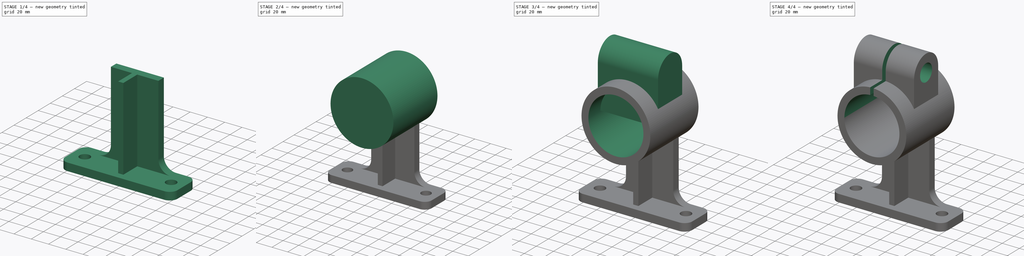
[diagram: build sequence overview — one tinted view per stage of 4, left to right]
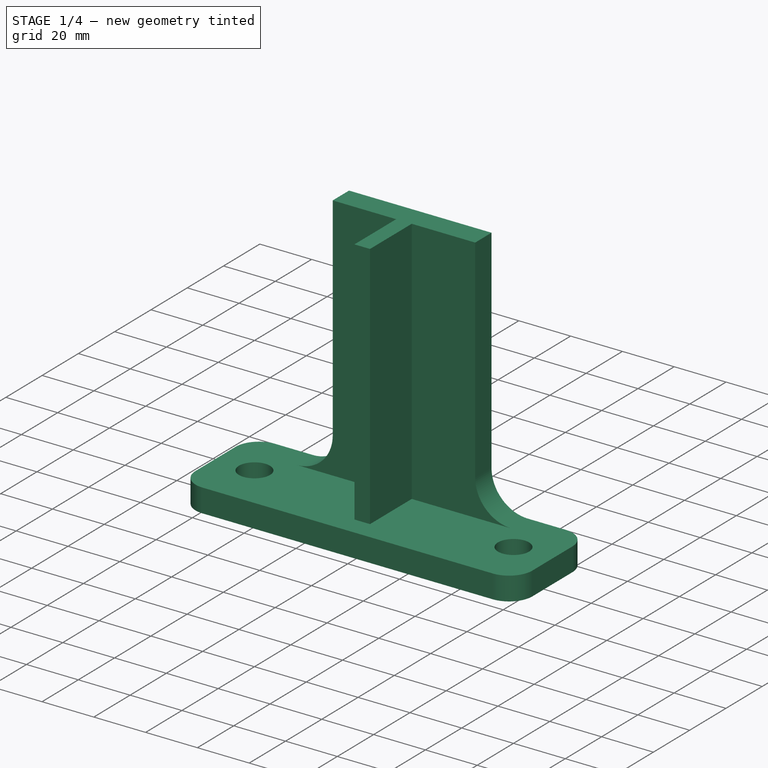
[diagram: stage 1 of 4 — iso view after this stage's code; geometry added in this stage tinted green]
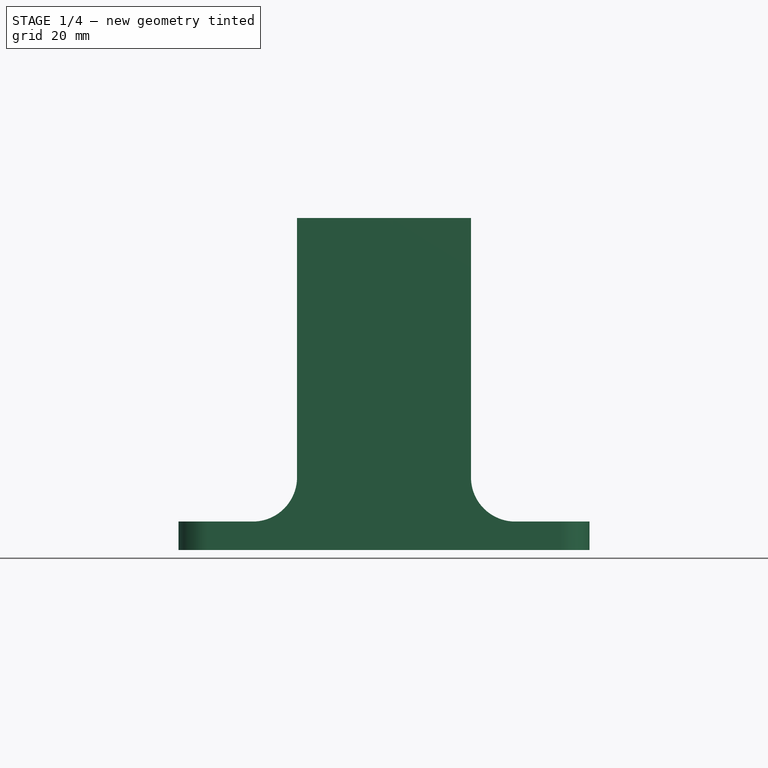
[diagram: stage 1 of 4 — front view after this stage's code; geometry added in this stage tinted green]
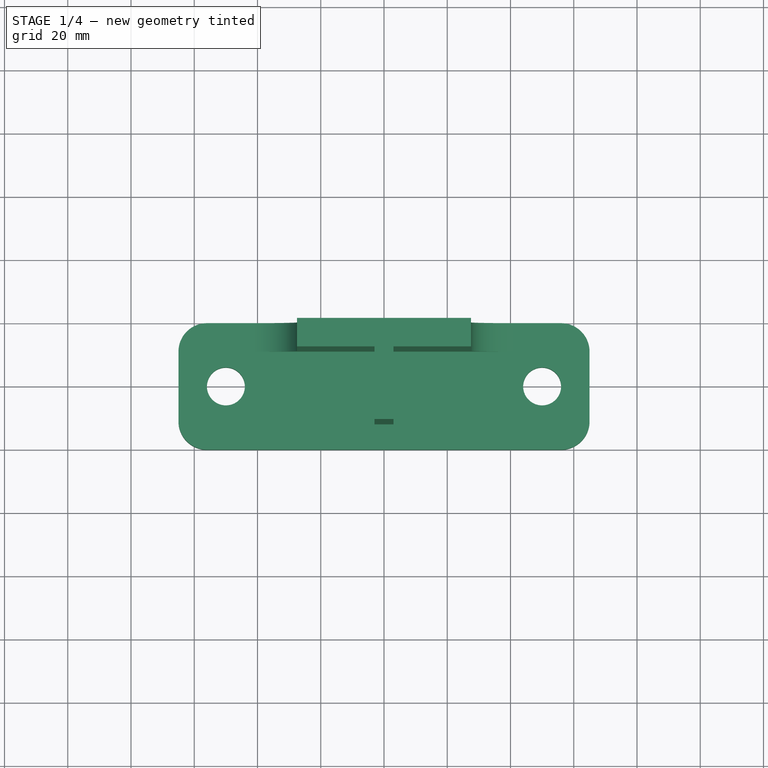
[diagram: stage 1 of 4 — top view after this stage's code; geometry added in this stage tinted green]
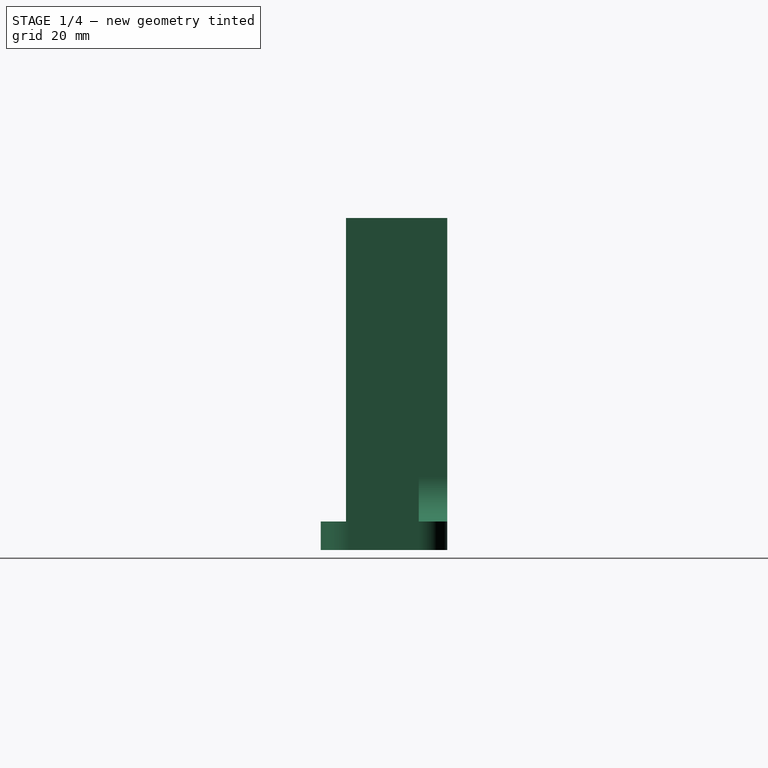
[diagram: stage 1 of 4 — right view after this stage's code; geometry added in this stage tinted green]
FCSTD DOCUMENT  (FreeCAD 1.1R41905 (Git))
Label: 25-SPO-14-UPPER_ROD_MOUNT
License: Creative Commons Attribution-NonCommercial-ShareAlike 4.0
LicenseURL: https://creativecommons.org/licenses/by-nc-sa/4.0/
objects: Sketcher::SketchObject×7, PartDesign::Pad×6, PartDesign::Pocket×3, App::Point×1, PartDesign::Fillet×1, PartDesign::Hole×1, PartDesign::Body×1
note: 48 computed .brp shape members not serialized (recipe doc carries the construction recipe); baked Part::Feature solids carry a one-line shape summary decoded from their .brp

FEATURE [App::Point] Origin001  label="Origine"
  Role = Origin
FEATURE [Sketcher::SketchObject] Sketch
  ArcFitTolerance = 1e-06
  AttachmentSupport = -> [Origin]
  ExternalTypes = [0]
  FullyConstrained = true
  MakeInternals = false
  MapMode = 5
  sketch-geometry (12):
    g0: LineSegment StartX=-65 StartY=11 StartZ=0 EndX=-65 EndY=-11 EndZ=0
    g1: LineSegment StartX=-56 StartY=-20 StartZ=0 EndX=56 EndY=-20 EndZ=0
    g2: LineSegment StartX=65 StartY=-11 StartZ=0 EndX=65 EndY=11 EndZ=0
    g3: LineSegment StartX=56 StartY=20 StartZ=0 EndX=-56 EndY=20 EndZ=0
    g4: ArcOfCircle CenterX=-56 CenterY=11 CenterZ=0 NormalX=0 NormalY=0 NormalZ=1 AngleXU=0 Radius=9 StartAngle=1.5708 EndAngle=3.14159
    g5: ArcOfCircle CenterX=-56 CenterY=-11 CenterZ=0 NormalX=0 NormalY=0 NormalZ=1 AngleXU=0 Radius=9 StartAngle=3.14159 EndAngle=4.71239
    g6: ArcOfCircle CenterX=56 CenterY=-11 CenterZ=0 NormalX=0 NormalY=0 NormalZ=1 AngleXU=0 Radius=9 StartAngle=4.71239 EndAngle=6.28319
    g7: ArcOfCircle CenterX=56 CenterY=11 CenterZ=0 NormalX=0 NormalY=0 NormalZ=1 AngleXU=0 Radius=9 StartAngle=1e-16 EndAngle=1.5708
    g8: GeomPoint [constr] X=-65 Y=20 Z=0
    g9: GeomPoint [constr] X=65 Y=-20 Z=0
    g10: Circle CenterX=-50 CenterY=0 CenterZ=0 NormalX=0 NormalY=0 NormalZ=1 AngleXU=0 Radius=6
    g11: Circle CenterX=50 CenterY=0 CenterZ=0 NormalX=0 NormalY=0 NormalZ=1 AngleXU=0 Radius=6
  constraints (28):
    c: Tangent(g0,g4) = -1.5708
    c: Tangent(g0,g5) = -1.5708
    c: Tangent(g1,g5) = -1.5708
    c: Tangent(g1,g6) = -1.5708
    c: Tangent(g2,g6) = -1.5708
    c: Tangent(g2,g7) = -1.5708
    c: Tangent(g3,g7) = -1.5708
    c: Tangent(g3,g4) = -1.5708
    c: Vertical(g0)
    c: Vertical(g2)
    c: Horizontal(g1)
    c: Horizontal(g3)
    c: Equal(g4,g5)
    c: Equal(g5,g6)
    c: Equal(g6,g7)
    c: PointOnObject(g8,g0)
    c: PointOnObject(g8,g3)
    c: PointOnObject(g9,g1)
    c: PointOnObject(g9,g2)
    c: Distance(g0,g2) = 130
    c: Distance(g1,g3) = 40
    c: Radius(g5) = 9
    c: Symmetric(g4,g6,g-1)
    c: PointOnObject(g10,g-1)
    c: DistanceX(g10,g11) = 100
    c: Symmetric(g10,g11,g-2)
    c: Equal(g10,g11)
    c: Diameter(g11) = 12
FEATURE [PartDesign::Pad] Pad
  Direction = (0,0,1)
  Length = 9
  Length2 = 10
  Profile = -> Sketch
  ReferenceAxis = -> Sketch [N_Axis]
  Refine = true
  Suppressed = false
  Type = 0
FEATURE [Sketcher::SketchObject] Sketch001
  ArcFitTolerance = 1e-06
  AttachmentSupport = -> [Origin]
  ExternalGeometry = -> [Pad]
  ExternalTypes = [0,0]
  FullyConstrained = true
  MakeInternals = false
  MapMode = 5
  sketch-geometry (8):
    g0: LineSegment StartX=-27.5 StartY=20 StartZ=0 EndX=-27.5 EndY=11 EndZ=0
    g1: LineSegment StartX=-27.5 StartY=11 StartZ=0 EndX=-3 EndY=11 EndZ=0
    g2: LineSegment StartX=27.5 StartY=11 StartZ=0 EndX=27.5 EndY=20 EndZ=0
    g3: LineSegment StartX=27.5 StartY=20 StartZ=0 EndX=-27.5 EndY=20 EndZ=0
    g4: LineSegment StartX=-3 StartY=11 StartZ=0 EndX=-3 EndY=-12 EndZ=0
    g5: LineSegment StartX=-3 StartY=-12 StartZ=0 EndX=3 EndY=-12 EndZ=0
    g6: LineSegment StartX=3 StartY=-12 StartZ=0 EndX=3 EndY=11 EndZ=0
    g7: LineSegment StartX=3 StartY=11 StartZ=0 EndX=27.5 EndY=11 EndZ=0
  constraints (22):
    c: Coincident(g0,g1)
    c: Coincident(g7,g2)
    c: Coincident(g2,g3)
    c: Coincident(g3,g0)
    c: Vertical(g0)
    c: Vertical(g2)
    c: Distance(g0,g2) = 55
    c: Distance(g1,g3) = 9
    c: PointOnObject(g0,g-3)
    c: Symmetric(g2,g0,g-2)
    c: Coincident(g4,g5)
    c: Coincident(g5,g6)
    c: Vertical(g4)
    c: Vertical(g6)
    c: Distance(g4,g6) = 6
    c: Symmetric(g5,g4,g-2)
    c: Distance(g5,g-4) = 8
    c: Horizontal(g1)
    c: Horizontal(g7)
    c: Coincident(g4,g1)
    c: Coincident(g7,g6)
    c: Horizontal(g6,g1)
FEATURE [PartDesign::Pad] Pad001
  BaseFeature = -> Pad
  Direction = (0,0,1)
  Length = 105
  Length2 = 10
  Profile = -> Sketch001
  ReferenceAxis = -> Sketch001 [N_Axis]
  Refine = true
  Suppressed = false
  Type = 0
FEATURE [PartDesign::Fillet] Fillet
  Base = -> Pad001 [Edge18,Edge12]
  BaseFeature = -> Pad001
  Radius = 14
  Refine = true
  SupportTransform = false
  Suppressed = false
  UseAllEdges = false
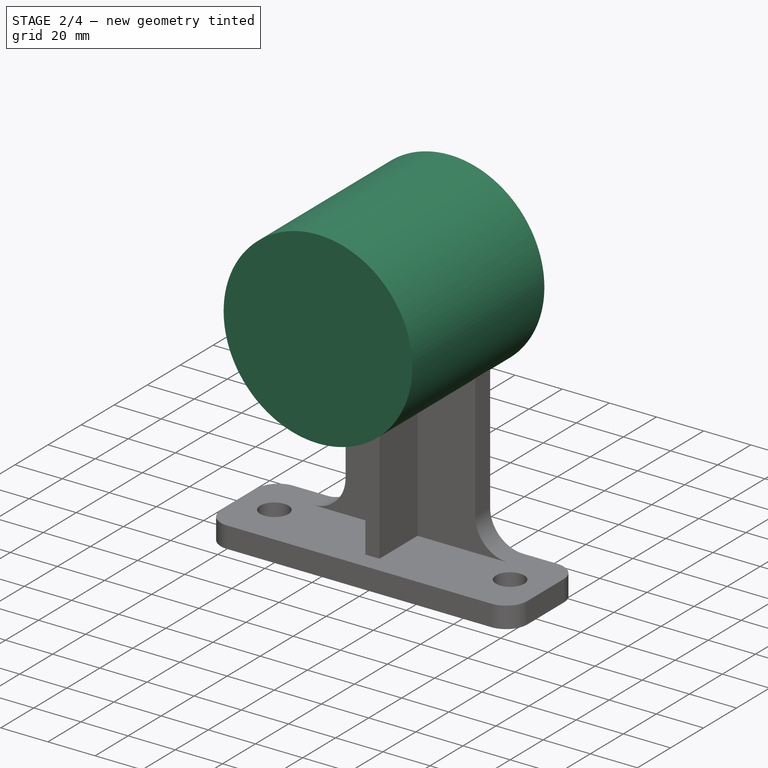
[diagram: stage 2 of 4 — iso view after this stage's code; geometry added in this stage tinted green]
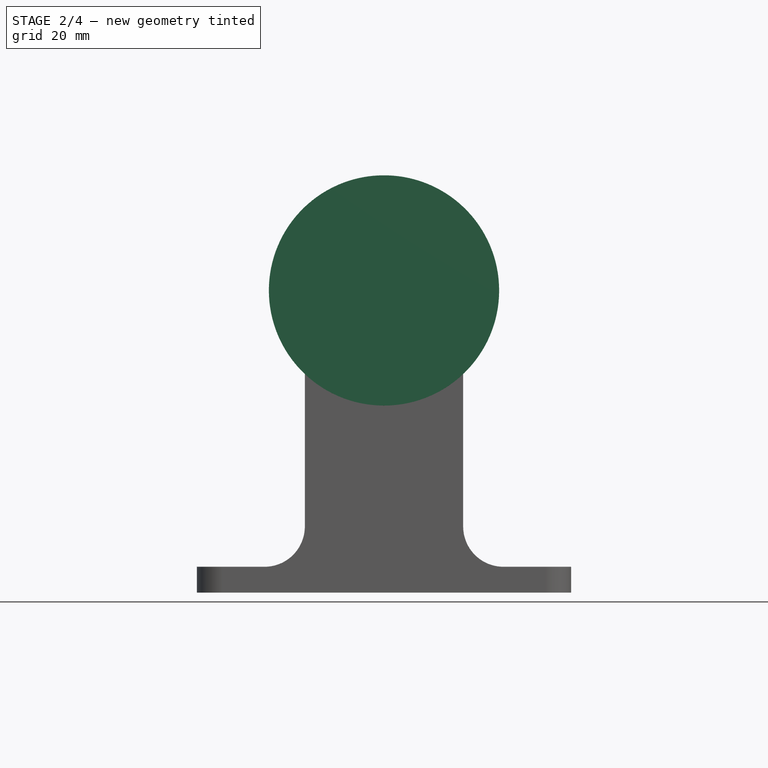
[diagram: stage 2 of 4 — front view after this stage's code; geometry added in this stage tinted green]
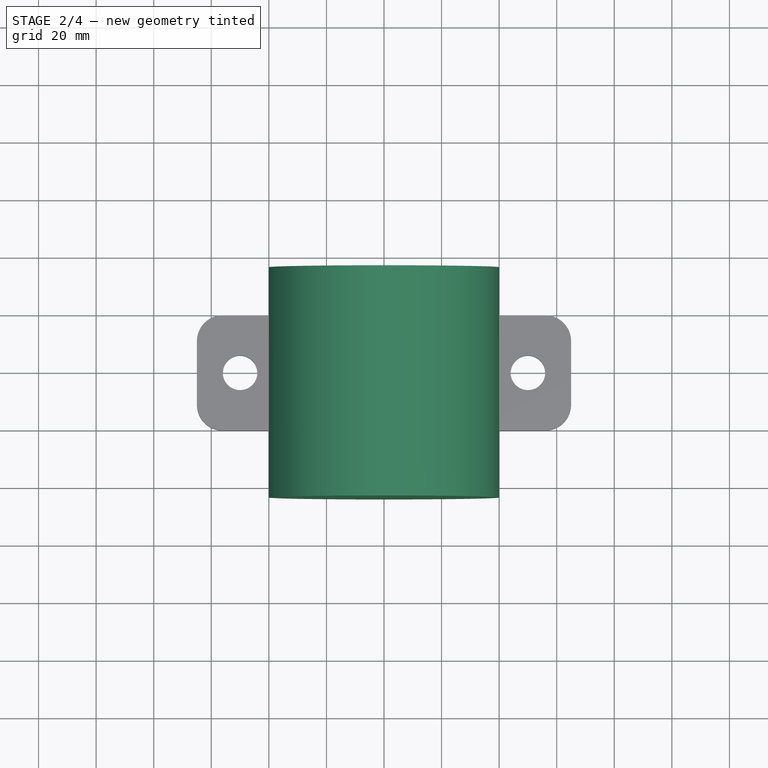
[diagram: stage 2 of 4 — top view after this stage's code; geometry added in this stage tinted green]
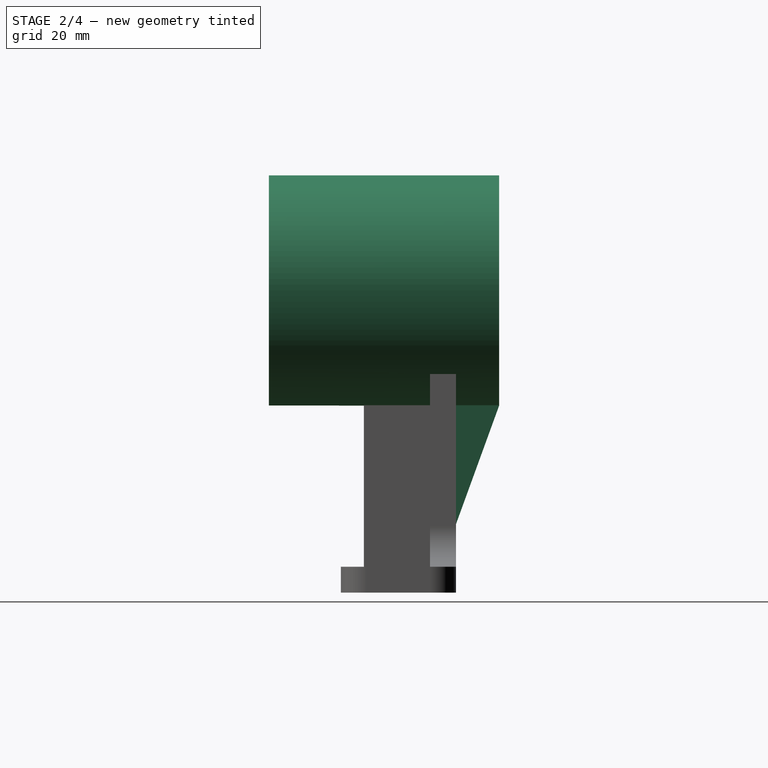
[diagram: stage 2 of 4 — right view after this stage's code; geometry added in this stage tinted green]
FEATURE [Sketcher::SketchObject] Sketch002
  ArcFitTolerance = 1e-06
  AttachmentOffset = pos=(0,0,15) rot=(0,0,1;0rad)
  AttachmentSupport = -> [Fillet]
  ExternalGeometry = -> [Fillet]
  ExternalTypes = [0]
  FullyConstrained = true
  MakeInternals = false
  MapMode = 5
  Placement = pos=(0,35,-3.3e-15) rot=(0,0.707107,0.707107;3.14159rad)
  sketch-geometry (1):
    g0: Circle CenterX=0 CenterY=105 CenterZ=0 NormalX=0 NormalY=0 NormalZ=1 AngleXU=0 Radius=40
  constraints (2):
    c: Diameter(g0) = 80
    c: Symmetric(g-3,g-3,g0)
FEATURE [PartDesign::Pad] Pad002
  BaseFeature = -> Fillet
  Direction = (0,1,0)
  Length = 80
  Length2 = 10
  Profile = -> Sketch002
  ReferenceAxis = -> Sketch002 [N_Axis]
  Refine = true
  Reversed = true
  Suppressed = false
  Type = 0
FEATURE [Sketcher::SketchObject] Sketch003
  ArcFitTolerance = 1e-06
  AttachmentSupport = -> [Origin]
  ExternalGeometry = -> [Pad002]
  ExternalTypes = [0,0]
  FullyConstrained = true
  MakeInternals = false
  MapMode = 5
  Placement = pos=(0,0,0) rot=(0.57735,0.57735,0.57735;2.0944rad)
  sketch-geometry (3):
    g0: LineSegment StartX=35 StartY=65 StartZ=0 EndX=20 EndY=65 EndZ=0
    g1: LineSegment StartX=20 StartY=65 StartZ=0 EndX=20 EndY=23.7878 EndZ=0
    g2: LineSegment StartX=20 StartY=23.7878 StartZ=0 EndX=35 EndY=65 EndZ=0
  constraints (8):
    c: Coincident(g-3,g0)
    c: PointOnObject(g0,g-4)
    c: Horizontal(g0)
    c: Coincident(g0,g1)
    c: PointOnObject(g1,g-4)
    c: Coincident(g1,g2)
    c: Coincident(g2,g0)
    c: Angle(g2,g1) = 0.349066
FEATURE [PartDesign::Pad] Pad003
  BaseFeature = -> Pad002
  Direction = (1,0,0)
  Length = 6
  Length2 = 10
  Midplane = true
  Profile = -> Sketch003
  ReferenceAxis = -> Sketch003 [N_Axis]
  Refine = true
  Suppressed = false
  Type = 0
FEATURE [PartDesign::Pad] Pad004
  BaseFeature = -> Pad003
  Direction = (0,0,1)
  Length = 10
  Length2 = 10
  Profile = -> Pad003 [Face28]
  Refine = true
  Suppressed = false
  Type = 0
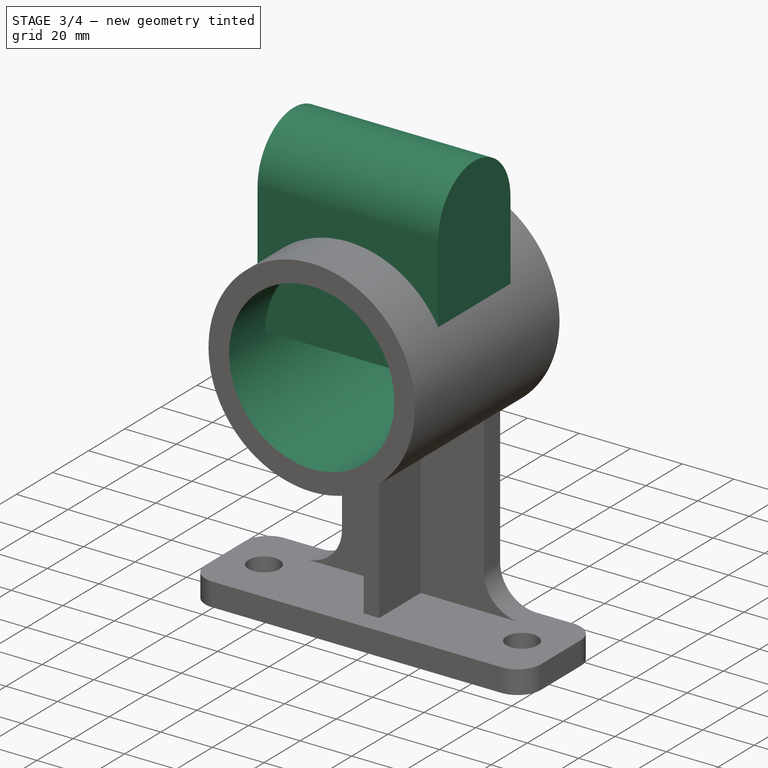
[diagram: stage 3 of 4 — iso view after this stage's code; geometry added in this stage tinted green]
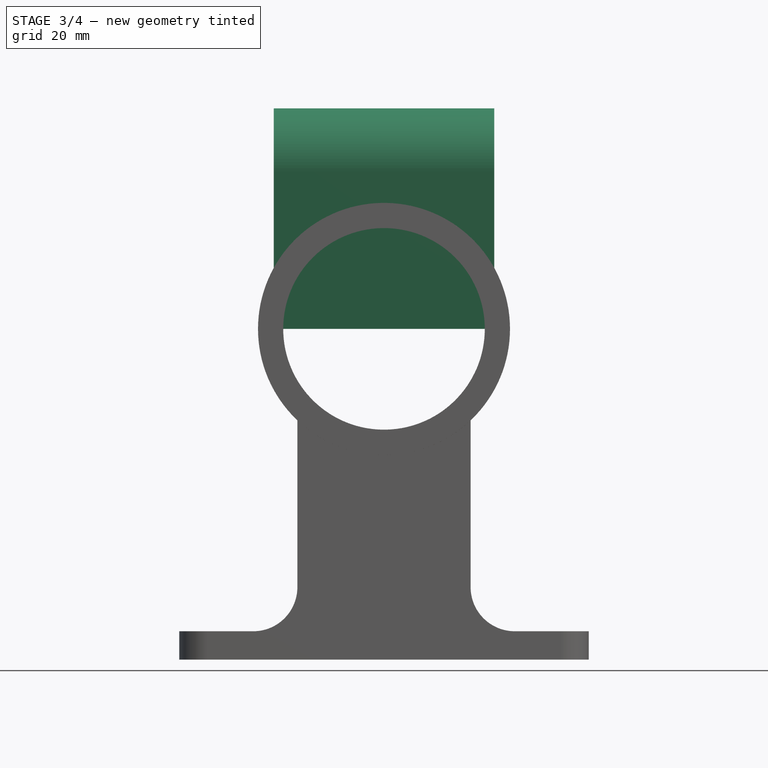
[diagram: stage 3 of 4 — front view after this stage's code; geometry added in this stage tinted green]
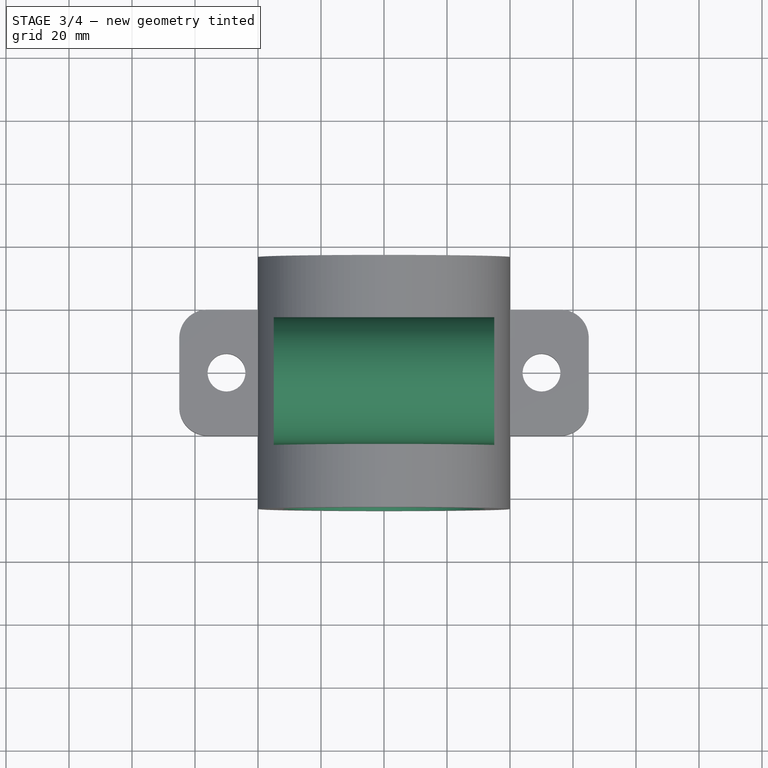
[diagram: stage 3 of 4 — top view after this stage's code; geometry added in this stage tinted green]
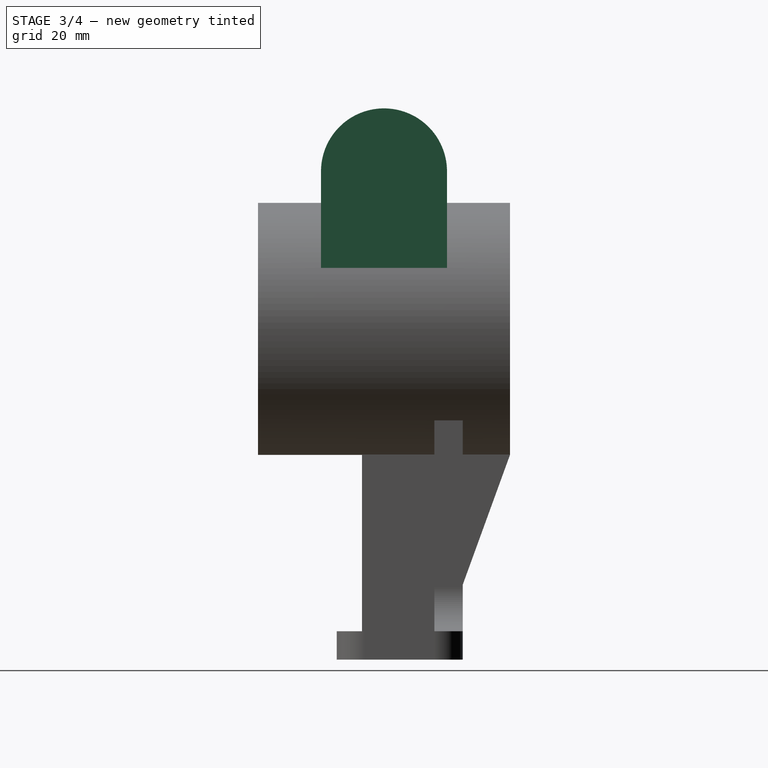
[diagram: stage 3 of 4 — right view after this stage's code; geometry added in this stage tinted green]
FEATURE [PartDesign::Hole] Hole
  BaseFeature = -> Pad004
  BaseProfileType = 7
  CustomThreadClearance = 0
  Depth = 425.275
  DepthType = 1
  Diameter = 64
  DrillForDepth = false
  DrillPoint = 1
  DrillPointAngle = 118
  HoleCutCountersinkAngle = 90
  HoleCutCustomValues = false
  HoleCutDepth = 0
  HoleCutDiameter = 0
  HoleCutType = 0
  ModelThread = false
  Profile = -> Pad004 [Face24]
  Refine = true
  Suppressed = false
  Tapered = false
  TaperedAngle = 90
  ThreadClass = 0
  ThreadDepth = 425.275
  ThreadDepthType = 0
  ThreadDiameter = 64
  ThreadDirection = 0
  ThreadFit = 0
  ThreadSize = 0
  ThreadType = 0
  Threaded = false
  UseCustomThreadClearance = false
FEATURE [Sketcher::SketchObject] Sketch004
  ArcFitTolerance = 1e-06
  AttachmentSupport = -> [Origin]
  ExternalGeometry = -> [Hole]
  ExternalTypes = [0]
  FullyConstrained = true
  MakeInternals = false
  MapMode = 5
  Placement = pos=(0,0,0) rot=(0.57735,0.57735,0.57735;2.0944rad)
  sketch-geometry (5):
    g0: LineSegment StartX=-25 StartY=105 StartZ=0 EndX=-25 EndY=155 EndZ=0
    g1: ArcOfCircle CenterX=-5 CenterY=155 CenterZ=0 NormalX=0 NormalY=0 NormalZ=1 AngleXU=0 Radius=20 StartAngle=-9e-16 EndAngle=3.14159
    g2: LineSegment StartX=15 StartY=155 StartZ=0 EndX=15 EndY=105 EndZ=0
    g3: LineSegment StartX=15 StartY=105 StartZ=0 EndX=-25 EndY=105 EndZ=0
    g4: LineSegment [constr] StartX=-5 StartY=155 StartZ=0 EndX=-5 EndY=105 EndZ=0
  constraints (13):
    c: Vertical(g0)
    c: Tangent(g0,g1) = 1.5708
    c: Tangent(g1,g2) = 1.5708
    c: Coincident(g2,g3)
    c: Coincident(g3,g0)
    c: Horizontal(g3)
    c: Coincident(g4,g1)
    c: Vertical(g4)
    c: Symmetric(g-3,g-3,g4)
    c: Radius(g1) = 20
    c: Vertical(g2)
    c: Distance(g1,g-3) = 50
    c: PointOnObject(g0,g-3)
FEATURE [PartDesign::Pad] Pad005
  BaseFeature = -> Hole
  Direction = (1,0,0)
  Length = 70
  Length2 = 10
  Midplane = true
  Profile = -> Sketch004
  ReferenceAxis = -> Sketch004 [N_Axis]
  Refine = true
  Suppressed = false
  Type = 0
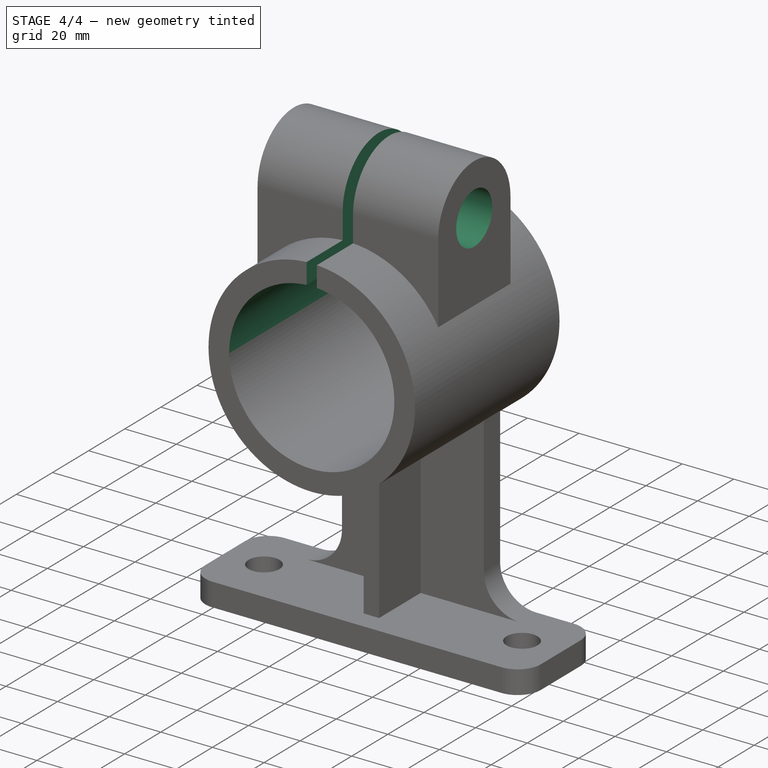
[diagram: stage 4 of 4 — iso view after this stage's code; geometry added in this stage tinted green]
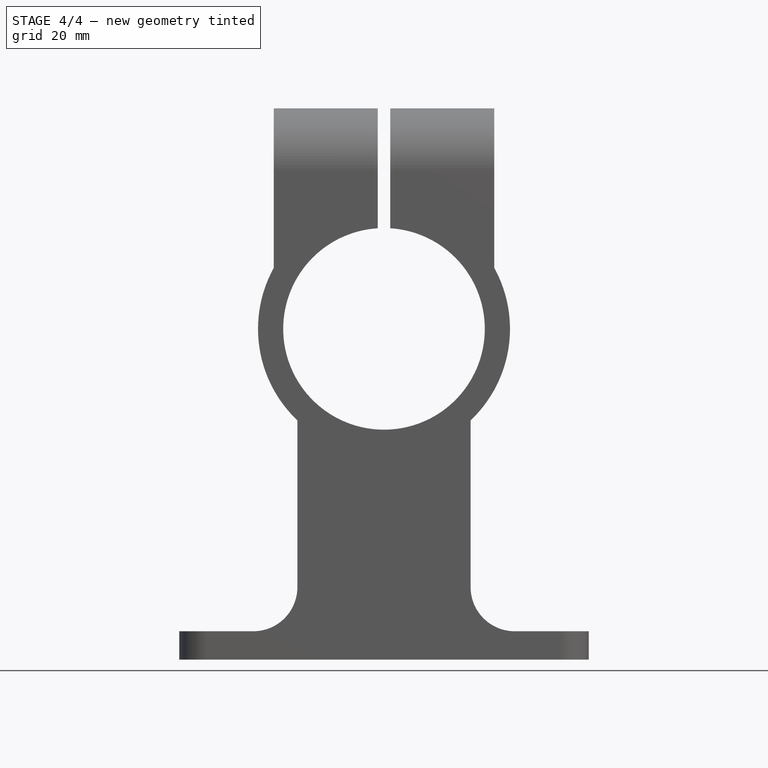
[diagram: stage 4 of 4 — front view after this stage's code; geometry added in this stage tinted green]
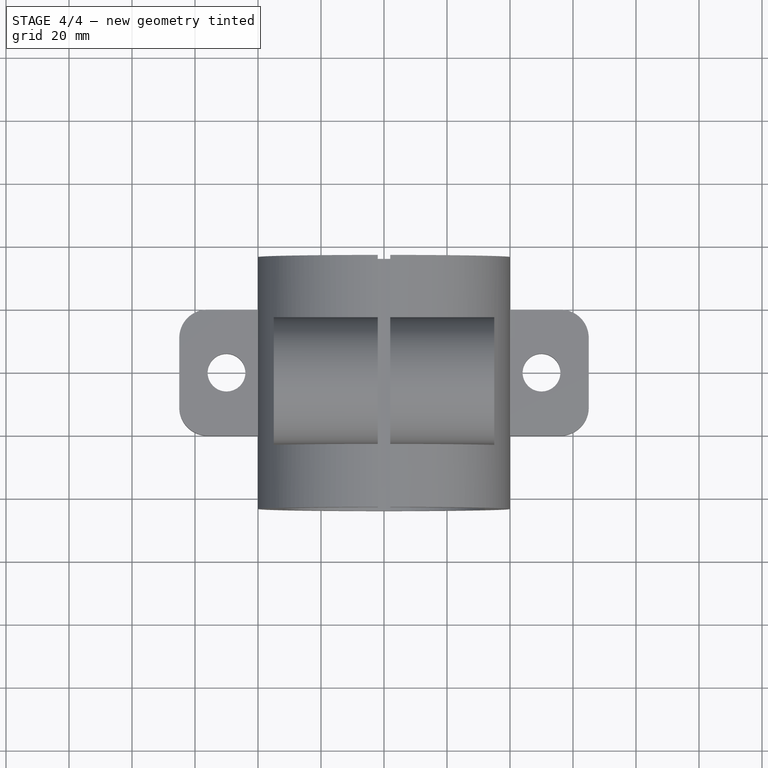
[diagram: stage 4 of 4 — top view after this stage's code; geometry added in this stage tinted green]
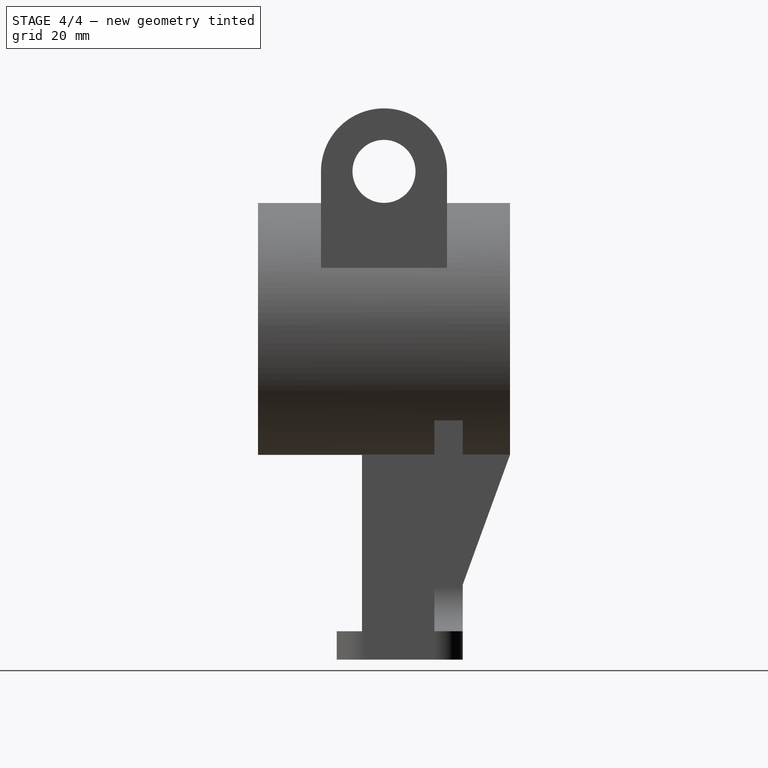
[diagram: stage 4 of 4 — right view after this stage's code; geometry added in this stage tinted green]
FEATURE [Sketcher::SketchObject] Sketch005
  ArcFitTolerance = 1e-06
  AttachmentSupport = -> [Origin]
  ExternalGeometry = -> [Pad005]
  ExternalTypes = [0]
  FullyConstrained = true
  MakeInternals = false
  MapMode = 5
  Placement = pos=(0,0,0) rot=(0.57735,0.57735,0.57735;2.0944rad)
  sketch-geometry (1):
    g0: Circle CenterX=-5 CenterY=155 CenterZ=0 NormalX=0 NormalY=0 NormalZ=1 AngleXU=0 Radius=10
  constraints (2):
    c: Diameter(g0) = 20
    c: Coincident(g0,g-3)
FEATURE [PartDesign::Pocket] Pocket
  BaseFeature = -> Pad005
  Direction = (-1,0,0)
  Length = 5
  Length2 = 5
  Midplane = true
  Profile = -> Sketch005
  ReferenceAxis = -> Sketch005 [N_Axis]
  Refine = true
  Suppressed = false
  Type = 1
FEATURE [PartDesign::Pocket] Pocket001
  BaseFeature = -> Pocket
  Direction = (0,-1,0)
  Length = 5
  Length2 = 5
  Midplane = true
  Profile = -> Pocket [Face36]
  Refine = true
  Suppressed = false
  Type = 1
FEATURE [Sketcher::SketchObject] Sketch006
  ArcFitTolerance = 1e-06
  AttachmentSupport = -> [Origin]
  ExternalGeometry = -> [Pocket001]
  ExternalTypes = [0,0,0]
  FullyConstrained = true
  MakeInternals = false
  MapMode = 5
  Placement = pos=(0,0,0) rot=(1,0,0;1.5708rad)
  sketch-geometry (5):
    g0: LineSegment StartX=-2 StartY=105 StartZ=0 EndX=2 EndY=105 EndZ=0
    g1: LineSegment StartX=2 StartY=105 StartZ=0 EndX=2 EndY=205 EndZ=0
    g2: LineSegment StartX=2 StartY=205 StartZ=0 EndX=-2 EndY=205 EndZ=0
    g3: LineSegment StartX=-2 StartY=205 StartZ=0 EndX=-2 EndY=105 EndZ=0
    g4: GeomPoint [constr] X=0 Y=155 Z=0
  constraints (13):
    c: Coincident(g0,g1)
    c: Coincident(g1,g2)
    c: Coincident(g2,g3)
    c: Coincident(g3,g0)
    c: Horizontal(g0)
    c: Horizontal(g2)
    c: Vertical(g1)
    c: Vertical(g3)
    c: Symmetric(g2,g0,g4)
    c: Distance(g1,g3) = 4
    c: Distance(g0,g2) = 100
    c: PointOnObject(g4,g-2)
    c: Horizontal(g-3,g0)
FEATURE [PartDesign::Pocket] Pocket002
  BaseFeature = -> Pocket001
  Direction = (0,1,0)
  Length = 5
  Length2 = 5
  Midplane = true
  Profile = -> Sketch006
  ReferenceAxis = -> Sketch006 [N_Axis]
  Refine = true
  Suppressed = false
  Type = 1
FEATURE [PartDesign::Body] Body  label="Corps"
  AllowCompound = false
  Group = -> [Sketch,Pad,Sketch001,Pad001,Fillet,Sketch002,Pad002,Sketch003,Pad003,Pad004,Hole,Sketch004,Pad005,Sketch005,Pocket,Pocket001,Sketch006,Pocket002]
  Origin = -> Origin
  Tip = -> Pocket002
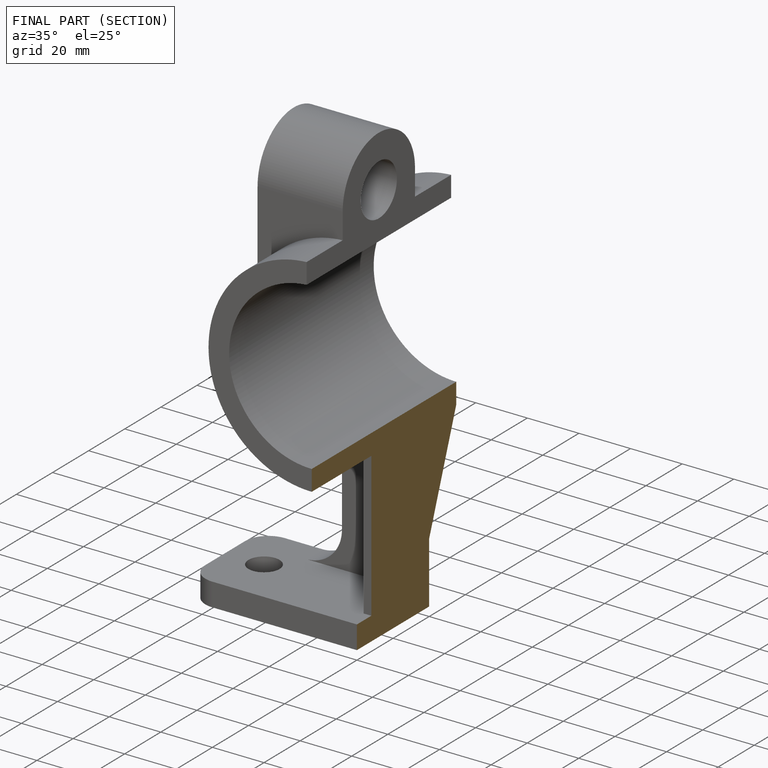
[diagram: finished part — half-section view (interior)]
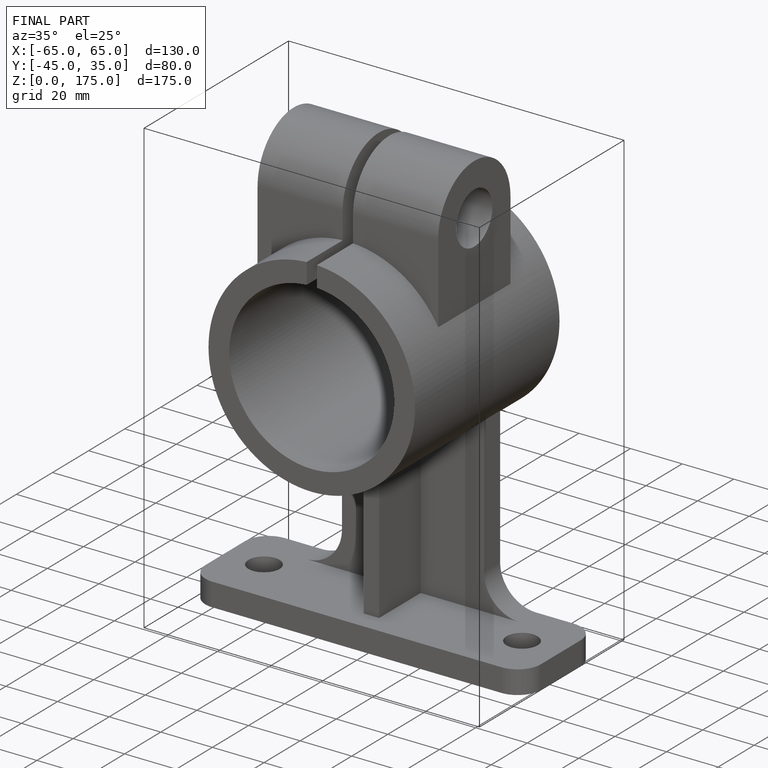
[diagram: finished part — iso view with bounding-box wireframe]
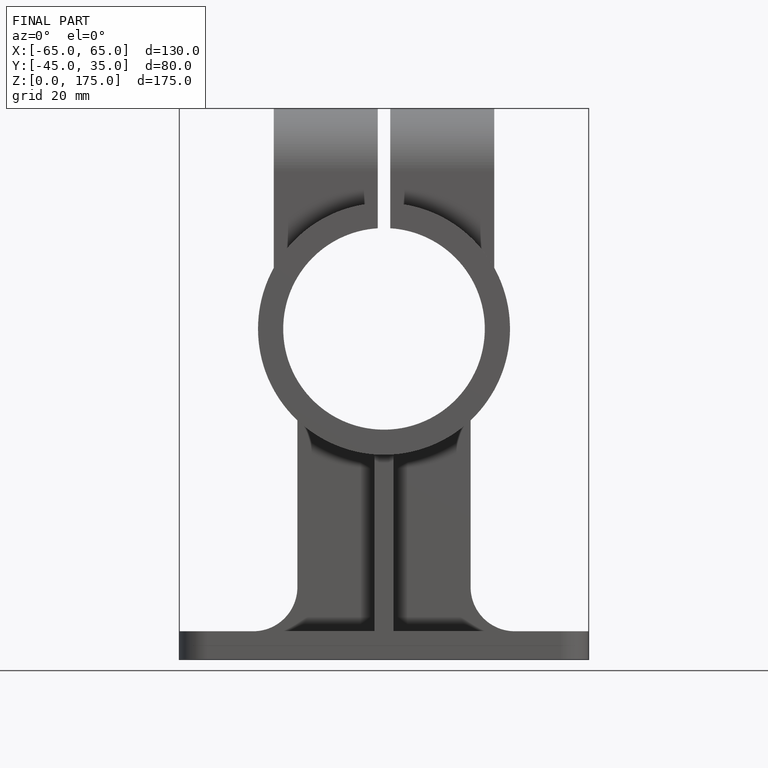
[diagram: finished part — front view with bounding-box wireframe]
